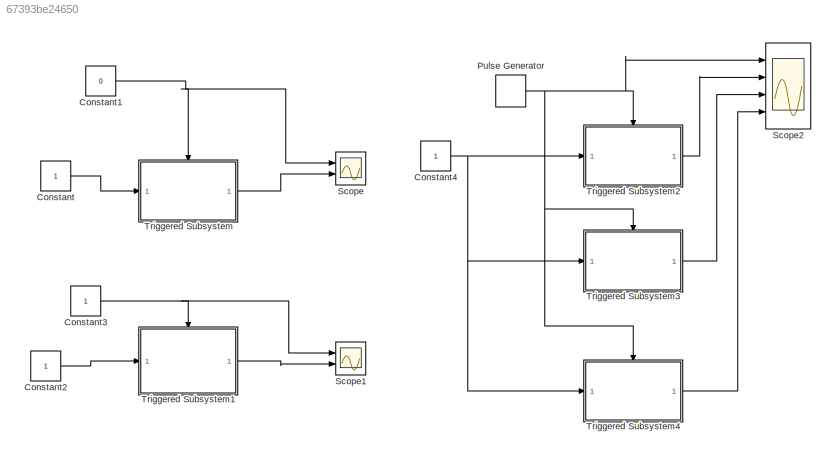
MODEL slx_67393be24650
KIND model
CONFIG AbsTol = auto
CONFIG EnableMultiTasking = off
CONFIG FixedStep = auto
CONFIG MaxStep = auto
CONFIG MinStep = auto
CONFIG RelTol = 1e-3
CONFIG SampleTimeConstraint = Unconstrained
CONFIG SolverName = VariableStepAuto
CONFIG StartTime = 0.0
CONFIG StopTime = 10.0
BLOCK [Constant] Constant
BLOCK [Constant] Constant1
  Value = 0
BLOCK [Constant] Constant2
BLOCK [Constant] Constant3
BLOCK [Constant] Constant4
BLOCK [DiscretePulseGenerator] Pulse Generator
  Ports = [0, 1]
  PulseType = Time based
  PulseWidth = 50
BLOCK [Scope] Scope
  Floating = off
  NumInputPorts = 2
  Ports = [2]
  ScopeSpecificationString = Simulink.scopes.TimeScopeBlockCfg('CurrentConfiguration', extmgr.ConfigurationSet(extmgr.Configuration('Core','General UI',true),extmgr.Configuration('Core','Source UI',true),extmgr.Configuration('Sources','WiredSimulink',true),extmgr.Configuration('Visuals','Time Domain',true,'SerializedDisplays',{struct('MinYLimReal','-1.00000','MaxYLimReal','1.00000','YLabelReal','','MinYLimMag','0.00000','MaxY...<+1985ch>
BLOCK [Scope] Scope1
  Floating = off
  NumInputPorts = 2
  Ports = [2]
  ScopeSpecificationString = Simulink.scopes.TimeScopeBlockCfg('CurrentConfiguration', extmgr.ConfigurationSet(extmgr.Configuration('Core','General UI',true),extmgr.Configuration('Core','Source UI',true),extmgr.Configuration('Sources','WiredSimulink',true,'DataLoggingVariableName','ScopeData1'),extmgr.Configuration('Visuals','Time Domain',true,'SerializedDisplays',{struct('MinYLimReal','0.9','MaxYLimReal','1.1','YLabelReal','...<+2006ch>
BLOCK [Scope] Scope2
  Floating = off
  NumInputPorts = 4
  Ports = [4]
  ScopeSpecificationString = Simulink.scopes.TimeScopeBlockCfg('CurrentConfiguration', extmgr.ConfigurationSet(extmgr.Configuration('Core','General UI',true),extmgr.Configuration('Core','Source UI',true),extmgr.Configuration('Sources','WiredSimulink',true,'DataLoggingVariableName','ScopeData2'),extmgr.Configuration('Visuals','Time Domain',true,'SerializedDisplays',{struct('MinYLimReal','-0.125','MaxYLimReal','1.125','YLabelRe...<+3504ch>
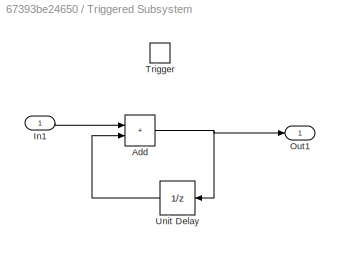
BLOCK [SubSystem] Triggered Subsystem
  Ports = [1, 1, 0, 1]
  RequestExecContextInheritance = off
  TreatAsAtomicUnit = on
BLOCK [Sum] Triggered Subsystem/Add
  IconShape = rectangular
  Ports = [2, 1]
BLOCK [Inport] Triggered Subsystem/In1
BLOCK [Outport] Triggered Subsystem/Out1
BLOCK [TriggerPort] Triggered Subsystem/Trigger
  Ports = []
  StatesWhenEnabling = held
  VariantControl = (inherit)
BLOCK [UnitDelay] Triggered Subsystem/Unit Delay
  HasFrameUpgradeWarning = on
  NameLocation = top
  SampleTime = -1
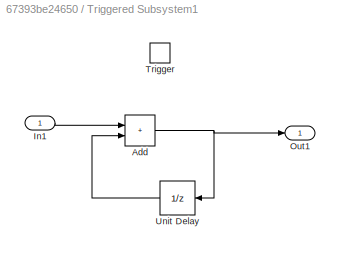
BLOCK [SubSystem] Triggered Subsystem1
  Ports = [1, 1, 0, 1]
  RequestExecContextInheritance = off
  TreatAsAtomicUnit = on
BLOCK [Sum] Triggered Subsystem1/Add
  IconShape = rectangular
  Ports = [2, 1]
BLOCK [Inport] Triggered Subsystem1/In1
BLOCK [Outport] Triggered Subsystem1/Out1
BLOCK [TriggerPort] Triggered Subsystem1/Trigger
  Ports = []
  StatesWhenEnabling = held
  VariantControl = (inherit)
BLOCK [UnitDelay] Triggered Subsystem1/Unit Delay
  HasFrameUpgradeWarning = on
  NameLocation = top
  SampleTime = -1
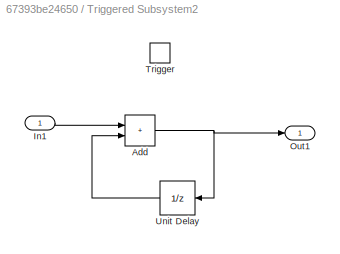
BLOCK [SubSystem] Triggered Subsystem2
  Ports = [1, 1, 0, 1]
  RequestExecContextInheritance = off
  TreatAsAtomicUnit = on
BLOCK [Sum] Triggered Subsystem2/Add
  IconShape = rectangular
  Ports = [2, 1]
BLOCK [Inport] Triggered Subsystem2/In1
BLOCK [Outport] Triggered Subsystem2/Out1
BLOCK [TriggerPort] Triggered Subsystem2/Trigger
  Ports = []
  StatesWhenEnabling = held
  VariantControl = (inherit)
BLOCK [UnitDelay] Triggered Subsystem2/Unit Delay
  HasFrameUpgradeWarning = on
  NameLocation = top
  SampleTime = -1
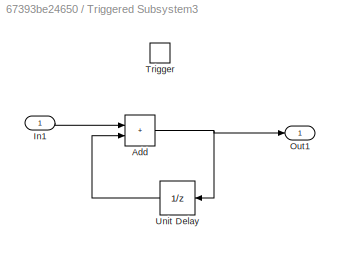
BLOCK [SubSystem] Triggered Subsystem3
  Ports = [1, 1, 0, 1]
  RequestExecContextInheritance = off
  TreatAsAtomicUnit = on
BLOCK [Sum] Triggered Subsystem3/Add
  IconShape = rectangular
  Ports = [2, 1]
BLOCK [Inport] Triggered Subsystem3/In1
BLOCK [Outport] Triggered Subsystem3/Out1
BLOCK [TriggerPort] Triggered Subsystem3/Trigger
  Ports = []
  StatesWhenEnabling = held
  TriggerType = falling
  VariantControl = (inherit)
BLOCK [UnitDelay] Triggered Subsystem3/Unit Delay
  HasFrameUpgradeWarning = on
  NameLocation = top
  SampleTime = -1
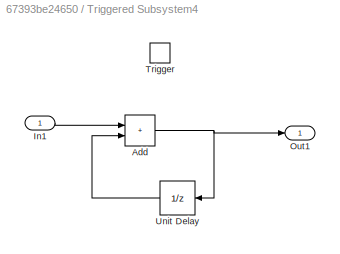
BLOCK [SubSystem] Triggered Subsystem4
  Ports = [1, 1, 0, 1]
  RequestExecContextInheritance = off
  TreatAsAtomicUnit = on
BLOCK [Sum] Triggered Subsystem4/Add
  IconShape = rectangular
  Ports = [2, 1]
BLOCK [Inport] Triggered Subsystem4/In1
BLOCK [Outport] Triggered Subsystem4/Out1
BLOCK [TriggerPort] Triggered Subsystem4/Trigger
  Ports = []
  StatesWhenEnabling = held
  TriggerType = either
  VariantControl = (inherit)
BLOCK [UnitDelay] Triggered Subsystem4/Unit Delay
  HasFrameUpgradeWarning = on
  NameLocation = top
  SampleTime = -1
NET Constant1:1 -> Scope:1, Triggered Subsystem:trigger
LINE Constant2:1 -> Triggered Subsystem1:1
NET Constant3:1 -> Scope1:1, Triggered Subsystem1:trigger
NET Constant4:1 -> Triggered Subsystem2:1, Triggered Subsystem3:1, Triggered Subsystem4:1
LINE Constant:1 -> Triggered Subsystem:1
NET Pulse Generator:1 -> Scope2:1, Triggered Subsystem2:trigger, Triggered Subsystem3:trigger, Triggered Subsystem4:trigger
NET Triggered Subsystem/Add:1 -> Triggered Subsystem/Out1:1, Triggered Subsystem/Unit Delay:1
LINE Triggered Subsystem/In1:1 -> Triggered Subsystem/Add:1
LINE Triggered Subsystem/Unit Delay:1 -> Triggered Subsystem/Add:2
NET Triggered Subsystem1/Add:1 -> Triggered Subsystem1/Out1:1, Triggered Subsystem1/Unit Delay:1
LINE Triggered Subsystem1/In1:1 -> Triggered Subsystem1/Add:1
LINE Triggered Subsystem1/Unit Delay:1 -> Triggered Subsystem1/Add:2
LINE Triggered Subsystem1:1 -> Scope1:2
NET Triggered Subsystem2/Add:1 -> Triggered Subsystem2/Out1:1, Triggered Subsystem2/Unit Delay:1
LINE Triggered Subsystem2/In1:1 -> Triggered Subsystem2/Add:1
LINE Triggered Subsystem2/Unit Delay:1 -> Triggered Subsystem2/Add:2
LINE Triggered Subsystem2:1 -> Scope2:2
NET Triggered Subsystem3/Add:1 -> Triggered Subsystem3/Out1:1, Triggered Subsystem3/Unit Delay:1
LINE Triggered Subsystem3/In1:1 -> Triggered Subsystem3/Add:1
LINE Triggered Subsystem3/Unit Delay:1 -> Triggered Subsystem3/Add:2
LINE Triggered Subsystem3:1 -> Scope2:3
NET Triggered Subsystem4/Add:1 -> Triggered Subsystem4/Out1:1, Triggered Subsystem4/Unit Delay:1
LINE Triggered Subsystem4/In1:1 -> Triggered Subsystem4/Add:1
LINE Triggered Subsystem4/Unit Delay:1 -> Triggered Subsystem4/Add:2
LINE Triggered Subsystem4:1 -> Scope2:4
LINE Triggered Subsystem:1 -> Scope:2
note: NET lines group one-source signal fan-out (src -> all destinations, sorted); 1:1 wires keep LINE
